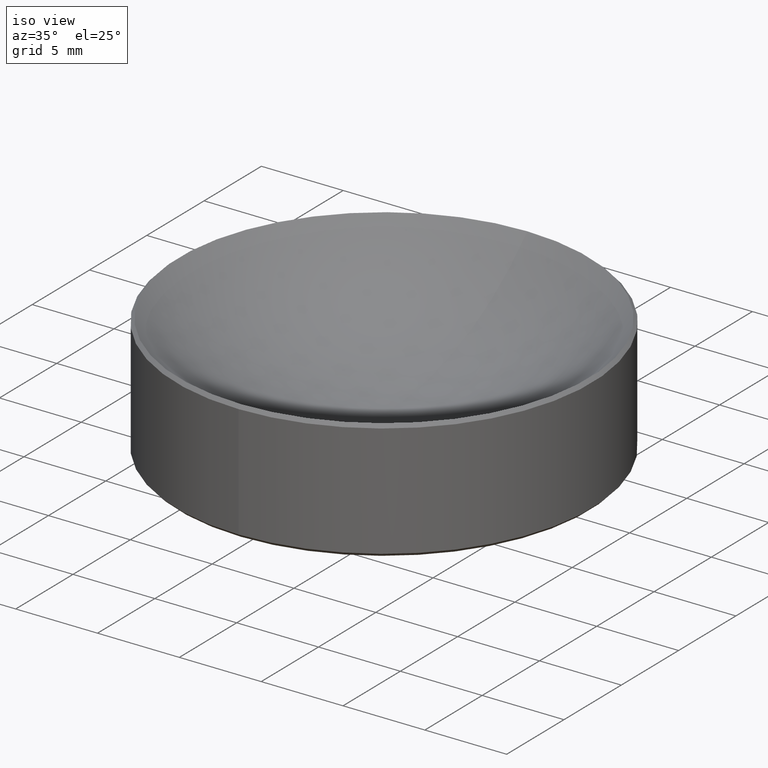
[diagram: clean part render]
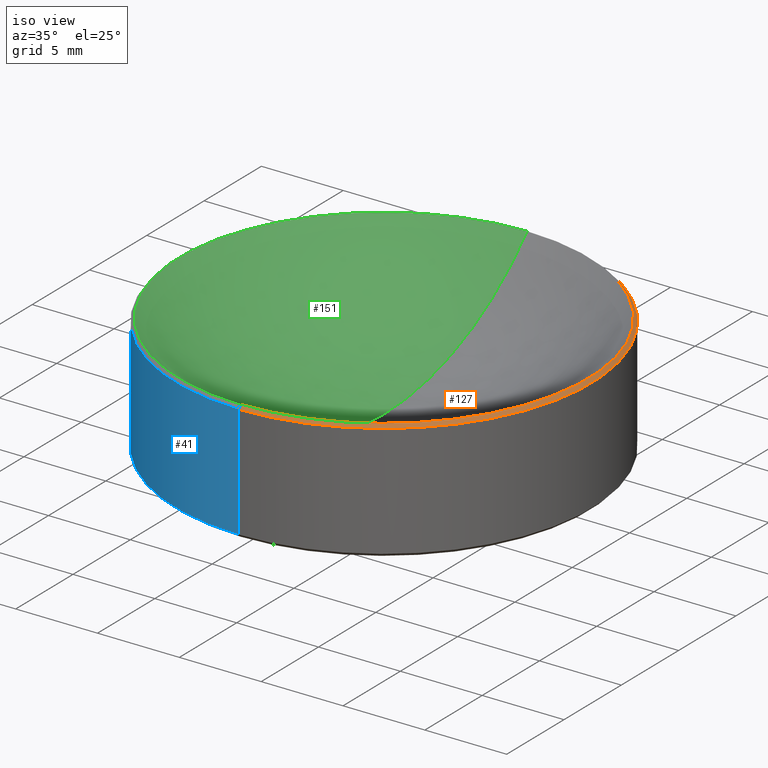
[diagram: same view with three faces highlighted in distinct colors, each labeled with its STEP entity id]
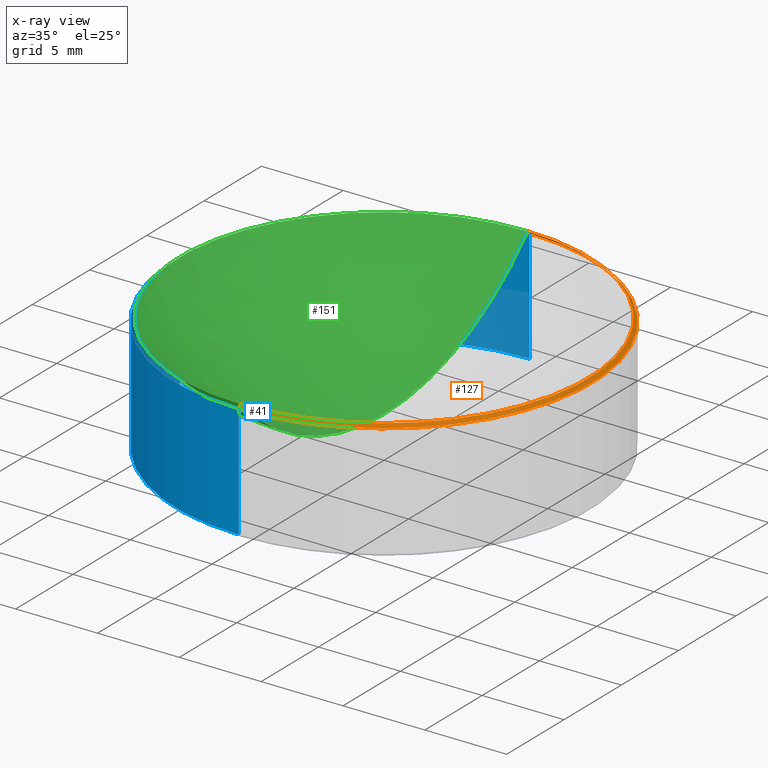
[diagram: x-ray of the same camera — body ghosted, the three highlighted faces saturated]
A machine part, iso view with three faces highlighted in distinct colors.
The next image is the same camera in x-ray (body ghosted, the three faces saturated) — at least one of them is partly hidden behind the body in this view.
Their STEP definitions:

[orange] entity #127 — the highlighted conical surface has half-angle 45 deg.
#4 = CARTESIAN_POINT ( 'NONE',  ( 0.0000000000000000000, 0.5000000000000000000, 0.1321802904112091300 ) ) ;
#7 = EDGE_CURVE ( 'NONE', #56, #208, #85, .T. ) ;
#16 = CARTESIAN_POINT ( 'NONE',  ( 0.0000000000000000000, 0.4922051220971562200, 0.1399751683140529900 ) ) ;
#26 = EDGE_CURVE ( 'NONE', #301, #235, #286, .T. ) ;
#29 = CARTESIAN_POINT ( 'NONE',  ( 0.0000000000000000000, -8.099691259872544800E-017, 0.1399751683140528200 ) ) ;
#56 = VERTEX_POINT ( 'NONE', #4 ) ;
#58 = DIRECTION ( 'NONE',  ( -0.0000000000000000000, 3.061515884555943100E-016, -1.000000000000000000 ) ) ;
#59 = DIRECTION ( 'NONE',  ( 0.0000000000000000000, 1.000000000000000000, 3.122000213831229100E-016 ) ) ;
#60 = LINE ( 'NONE', #103, #265 ) ;
#63 = ORIENTED_EDGE ( 'NONE', *, *, #71, .T. ) ;
#71 = EDGE_CURVE ( 'NONE', #235, #208, #95, .T. ) ;
#81 = DIRECTION ( 'NONE',  ( 0.0000000000000000000, 1.000000000000000000, 3.122000213831229100E-016 ) ) ;
#85 = CIRCLE ( 'NONE', #169, 0.5000000000000001100 ) ;
#88 = CARTESIAN_POINT ( 'NONE',  ( 6.075504134369456800E-017, -0.4922051220971563300, 0.1399751683140526800 ) ) ;
#93 = ORIENTED_EDGE ( 'NONE', *, *, #141, .F. ) ;
#95 = LINE ( 'NONE', #251, #142 ) ;
#103 = CARTESIAN_POINT ( 'NONE',  ( 0.0000000000000000000, 0.4922051220971562200, 0.1399751683140529900 ) ) ;
#106 = CARTESIAN_POINT ( 'NONE',  ( 6.123233995736767300E-017, -0.5000000000000001100, 0.1321802904112088200 ) ) ;
#117 = ORIENTED_EDGE ( 'NONE', *, *, #26, .T. ) ;
#120 = AXIS2_PLACEMENT_3D ( 'NONE', #29, #188, #59 ) ;
#121 = DIRECTION ( 'NONE',  ( 8.659560562354895900E-017, -0.7071067811865442400, -0.7071067811865507900 ) ) ;
#122 = DIRECTION ( 'NONE',  ( -0.0000000000000000000, 3.061515884555943100E-016, -1.000000000000000000 ) ) ;
#127 = ADVANCED_FACE ( 'NONE', ( #230 ), #252, .T. ) ;
#138 = DIRECTION ( 'NONE',  ( 0.0000000000000000000, 0.7071067811865446900, -0.7071067811865503500 ) ) ;
#141 = EDGE_CURVE ( 'NONE', #301, #56, #60, .T. ) ;
#142 = VECTOR ( 'NONE', #121, 39.37007874015748100 ) ;
#153 = ORIENTED_EDGE ( 'NONE', *, *, #7, .F. ) ;
#169 = AXIS2_PLACEMENT_3D ( 'NONE', #187, #58, #210 ) ;
#187 = CARTESIAN_POINT ( 'NONE',  ( 0.0000000000000000000, -7.861049834695238200E-017, 0.1321802904112089900 ) ) ;
#188 = DIRECTION ( 'NONE',  ( -0.0000000000000000000, 3.061515884555943100E-016, -1.000000000000000000 ) ) ;
#191 = EDGE_LOOP ( 'NONE', ( #117, #63, #153, #93 ) ) ;
#208 = VERTEX_POINT ( 'NONE', #106 ) ;
#210 = DIRECTION ( 'NONE',  ( 0.0000000000000000000, 1.000000000000000000, 3.073328992872295900E-016 ) ) ;
#230 = FACE_OUTER_BOUND ( 'NONE', #191, .T. ) ;
#235 = VERTEX_POINT ( 'NONE', #88 ) ;
#247 = AXIS2_PLACEMENT_3D ( 'NONE', #253, #122, #81 ) ;
#251 = CARTESIAN_POINT ( 'NONE',  ( 6.027774273002146400E-017, -0.4922051220971563300, 0.1399751683140526800 ) ) ;
#252 = CONICAL_SURFACE ( 'NONE', #247, 0.4922051220971562800, 0.7853981633974439500 ) ;
#253 = CARTESIAN_POINT ( 'NONE',  ( 0.0000000000000000000, -8.099691259872544800E-017, 0.1399751683140528200 ) ) ;
#265 = VECTOR ( 'NONE', #138, 39.37007874015748100 ) ;
#286 = CIRCLE ( 'NONE', #120, 0.4922051220971562800 ) ;
#301 = VERTEX_POINT ( 'NONE', #16 ) ;

[blue] entity #41 — the highlighted cylindrical surface (partial cylindrical patch) has radius 12.7 mm, axis along (-0, 0, -1).
#1 = DIRECTION ( 'NONE',  ( 0.0000000000000000000, 1.000000000000000000, 3.073328992872295900E-016 ) ) ;
#3 = EDGE_CURVE ( 'NONE', #208, #56, #245, .T. ) ;
#4 = CARTESIAN_POINT ( 'NONE',  ( 0.0000000000000000000, 0.5000000000000000000, 0.1321802904112091300 ) ) ;
#8 = EDGE_CURVE ( 'NONE', #56, #282, #297, .T. ) ;
#23 = LINE ( 'NONE', #128, #283 ) ;
#28 = CARTESIAN_POINT ( 'NONE',  ( 0.0000000000000000000, 0.5000000000000000000, -0.1482116097789674400 ) ) ;
#33 = ORIENTED_EDGE ( 'NONE', *, *, #8, .T. ) ;
#37 = AXIS2_PLACEMENT_3D ( 'NONE', #211, #139, #79 ) ;
#41 = ADVANCED_FACE ( 'NONE', ( #227 ), #165, .T. ) ;
#43 = AXIS2_PLACEMENT_3D ( 'NONE', #129, #292, #155 ) ;
#45 = CARTESIAN_POINT ( 'NONE',  ( 0.0000000000000000000, 0.5000000000000000000, -0.1403375940309363200 ) ) ;
#56 = VERTEX_POINT ( 'NONE', #4 ) ;
#78 = DIRECTION ( 'NONE',  ( -0.0000000000000000000, 3.061515884555943100E-016, -1.000000000000000000 ) ) ;
#79 = DIRECTION ( 'NONE',  ( 0.0000000000000000000, 1.000000000000000000, 3.073328992872296400E-016 ) ) ;
#86 = EDGE_LOOP ( 'NONE', ( #104, #108, #33, #171 ) ) ;
#97 = DIRECTION ( 'NONE',  ( -0.0000000000000000000, 3.061515884555943100E-016, -1.000000000000000000 ) ) ;
#104 = ORIENTED_EDGE ( 'NONE', *, *, #175, .F. ) ;
#106 = CARTESIAN_POINT ( 'NONE',  ( 6.123233995736767300E-017, -0.5000000000000001100, 0.1321802904112088200 ) ) ;
#108 = ORIENTED_EDGE ( 'NONE', *, *, #3, .T. ) ;
#128 = CARTESIAN_POINT ( 'NONE',  ( 6.123233995736766000E-017, -0.5000000000000000000, -0.1482116097789677500 ) ) ;
#129 = CARTESIAN_POINT ( 'NONE',  ( 0.0000000000000000000, 4.821284857568531500E-018, -0.1403375940309364900 ) ) ;
#136 = VECTOR ( 'NONE', #78, 39.37007874015748100 ) ;
#139 = DIRECTION ( 'NONE',  ( -0.0000000000000000000, 3.061515884555943100E-016, -1.000000000000000000 ) ) ;
#155 = DIRECTION ( 'NONE',  ( 0.0000000000000000000, 1.000000000000000000, 3.073328992872296400E-016 ) ) ;
#165 = CYLINDRICAL_SURFACE ( 'NONE', #37, 0.5000000000000000000 ) ;
#171 = ORIENTED_EDGE ( 'NONE', *, *, #296, .T. ) ;
#175 = EDGE_CURVE ( 'NONE', #208, #266, #23, .T. ) ;
#186 = CARTESIAN_POINT ( 'NONE',  ( 0.0000000000000000000, -7.861049834695238200E-017, 0.1321802904112089900 ) ) ;
#199 = CARTESIAN_POINT ( 'NONE',  ( 6.123233995736766000E-017, -0.5000000000000000000, -0.1403375940309366200 ) ) ;
#202 = AXIS2_PLACEMENT_3D ( 'NONE', #186, #97, #1 ) ;
#208 = VERTEX_POINT ( 'NONE', #106 ) ;
#211 = CARTESIAN_POINT ( 'NONE',  ( 0.0000000000000000000, 7.231927286352619700E-018, -0.1482116097789675800 ) ) ;
#227 = FACE_OUTER_BOUND ( 'NONE', #86, .T. ) ;
#245 = CIRCLE ( 'NONE', #202, 0.5000000000000001100 ) ;
#266 = VERTEX_POINT ( 'NONE', #199 ) ;
#282 = VERTEX_POINT ( 'NONE', #45 ) ;
#283 = VECTOR ( 'NONE', #289, 39.37007874015748100 ) ;
#289 = DIRECTION ( 'NONE',  ( -0.0000000000000000000, 3.061515884555943100E-016, -1.000000000000000000 ) ) ;
#292 = DIRECTION ( 'NONE',  ( 0.0000000000000000000, -3.061515884555942700E-016, 1.000000000000000000 ) ) ;
#296 = EDGE_CURVE ( 'NONE', #282, #266, #300, .T. ) ;
#297 = LINE ( 'NONE', #28, #136 ) ;
#300 = CIRCLE ( 'NONE', #43, 0.5000000000000000000 ) ;

[green] entity #151 — the highlighted spherical surface has radius 17.35 mm.
#10 = DIRECTION ( 'NONE',  ( 0.0000000000000000000, 1.000000000000000000, 2.999521860478629000E-016 ) ) ;
#15 = AXIS2_PLACEMENT_3D ( 'NONE', #168, #32, #190 ) ;
#16 = CARTESIAN_POINT ( 'NONE',  ( 0.0000000000000000000, 0.4922051220971562200, 0.1399751683140529900 ) ) ;
#20 = AXIS2_PLACEMENT_3D ( 'NONE', #246, #150, #10 ) ;
#32 = DIRECTION ( 'NONE',  ( -0.0000000000000000000, 3.061515884555943100E-016, -1.000000000000000000 ) ) ;
#40 = CIRCLE ( 'NONE', #15, 0.4922051220971562800 ) ;
#42 = CARTESIAN_POINT ( 'NONE',  ( 0.0000000000000000000, -9.329186199394882900E-017, 0.6135994138430797000 ) ) ;
#69 = DIRECTION ( 'NONE',  ( -1.224646799147353200E-016, 1.000000000000000000, 0.0000000000000000000 ) ) ;
#74 = EDGE_CURVE ( 'NONE', #235, #301, #40, .T. ) ;
#88 = CARTESIAN_POINT ( 'NONE',  ( 6.075504134369456800E-017, -0.4922051220971563300, 0.1399751683140526800 ) ) ;
#89 = CIRCLE ( 'NONE', #279, 0.6830708661417321800 ) ;
#114 = ORIENTED_EDGE ( 'NONE', *, *, #205, .T. ) ;
#118 = VERTEX_POINT ( 'NONE', #281 ) ;
#125 = DIRECTION ( 'NONE',  ( 0.0000000000000000000, 0.0000000000000000000, 1.000000000000000000 ) ) ;
#133 = AXIS2_PLACEMENT_3D ( 'NONE', #42, #197, #69 ) ;
#146 = SPHERICAL_SURFACE ( 'NONE', #20, 0.6830708661417322900 ) ;
#149 = EDGE_CURVE ( 'NONE', #301, #118, #89, .T. ) ;
#150 = DIRECTION ( 'NONE',  ( 1.000000000000000000, 0.0000000000000000000, -0.0000000000000000000 ) ) ;
#151 = ADVANCED_FACE ( 'NONE', ( #207 ), #146, .F. ) ;
#168 = CARTESIAN_POINT ( 'NONE',  ( 0.0000000000000000000, -8.099691259872544800E-017, 0.1399751683140528200 ) ) ;
#190 = DIRECTION ( 'NONE',  ( 0.0000000000000000000, 1.000000000000000000, 3.122000213831229100E-016 ) ) ;
#197 = DIRECTION ( 'NONE',  ( 1.000000000000000000, 1.224646799147353200E-016, 3.749275628560213600E-032 ) ) ;
#205 = EDGE_CURVE ( 'NONE', #235, #118, #214, .T. ) ;
#207 = FACE_OUTER_BOUND ( 'NONE', #277, .T. ) ;
#214 = CIRCLE ( 'NONE', #133, 0.6830708661417322900 ) ;
#235 = VERTEX_POINT ( 'NONE', #88 ) ;
#246 = CARTESIAN_POINT ( 'NONE',  ( 0.0000000000000000000, -9.329186199394882900E-017, 0.6135994138430797000 ) ) ;
#259 = DIRECTION ( 'NONE',  ( -1.000000000000000000, 0.0000000000000000000, 0.0000000000000000000 ) ) ;
#261 = CARTESIAN_POINT ( 'NONE',  ( 0.0000000000000000000, -9.329186199394882900E-017, 0.6135994138430797000 ) ) ;
#277 = EDGE_LOOP ( 'NONE', ( #302, #114, #280 ) ) ;
#279 = AXIS2_PLACEMENT_3D ( 'NONE', #261, #259, #125 ) ;
#280 = ORIENTED_EDGE ( 'NONE', *, *, #149, .F. ) ;
#281 = CARTESIAN_POINT ( 'NONE',  ( 0.0000000000000000000, 1.576573961936453100E-016, -0.06947145229865260600 ) ) ;
#301 = VERTEX_POINT ( 'NONE', #16 ) ;
#302 = ORIENTED_EDGE ( 'NONE', *, *, #74, .F. ) ;